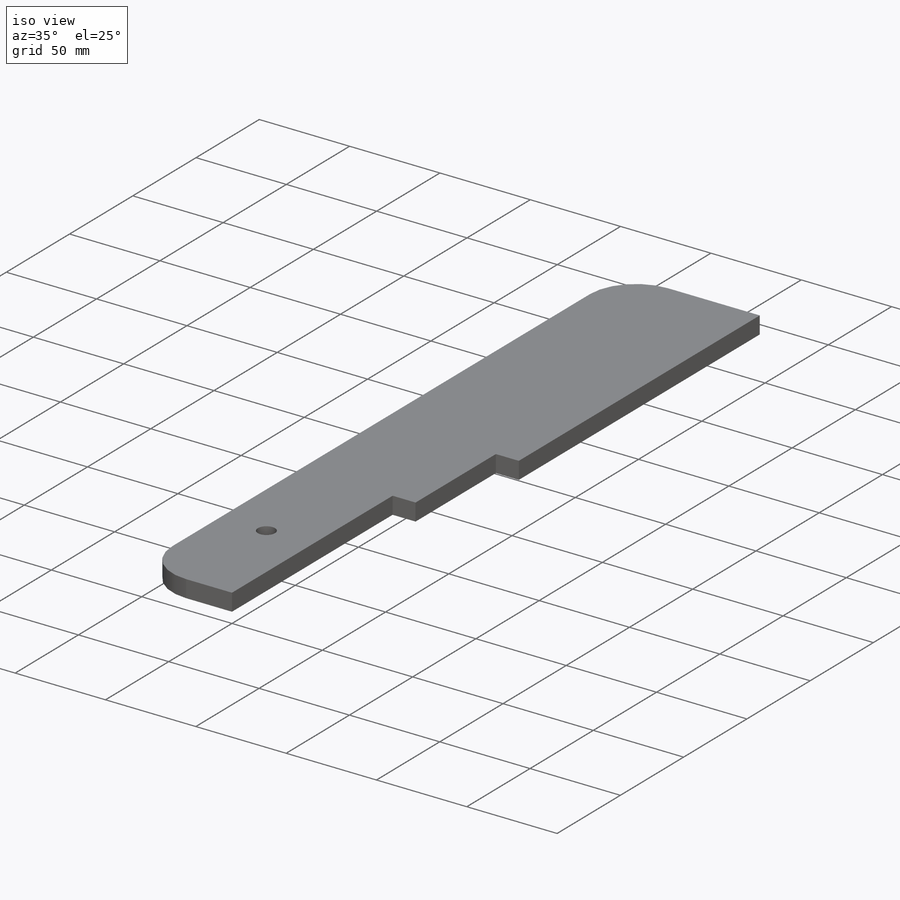
[diagram: iso view]
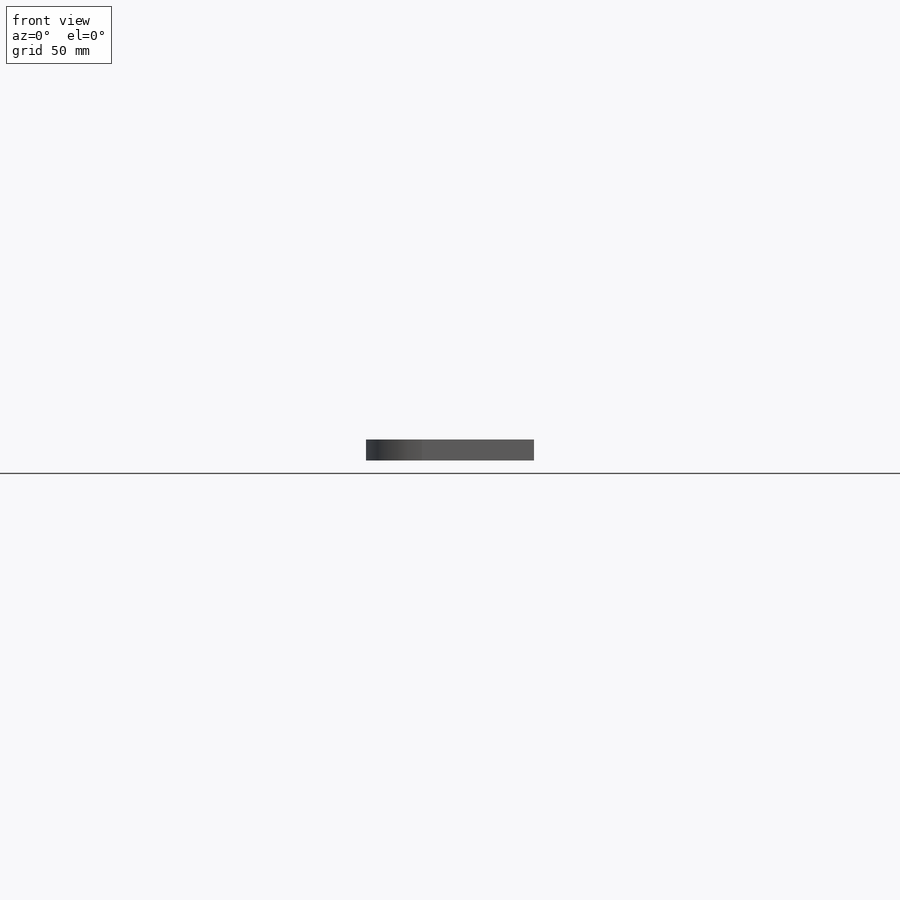
[diagram: front view]
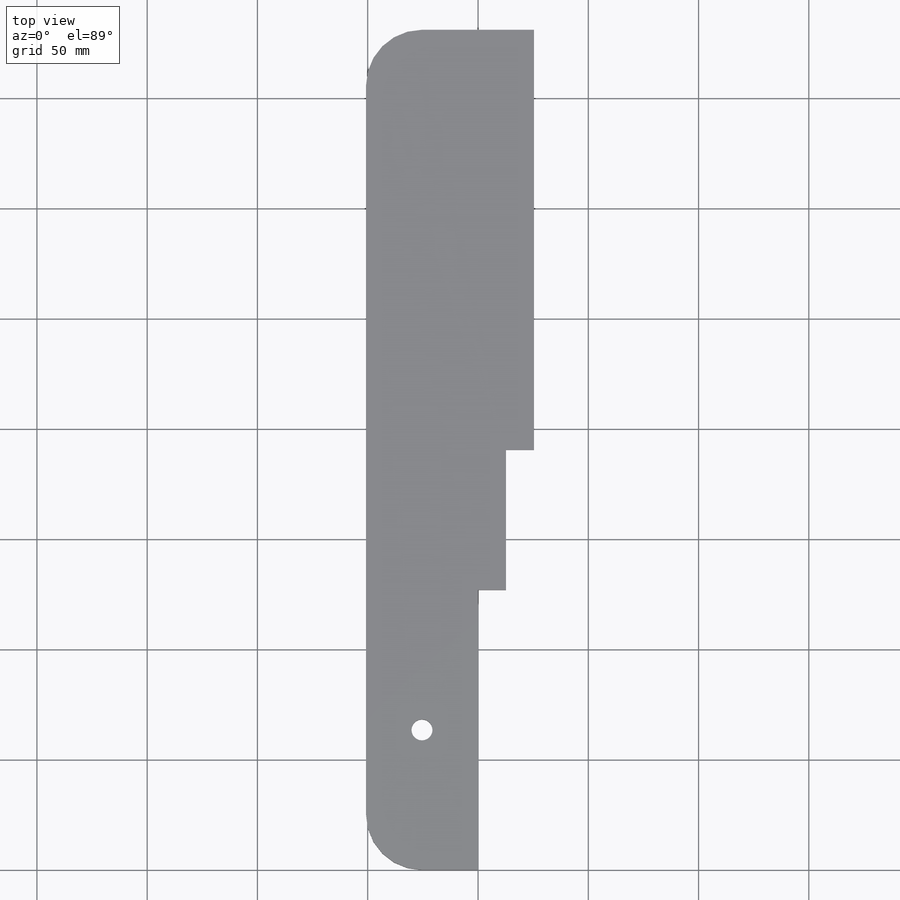
[diagram: top view]
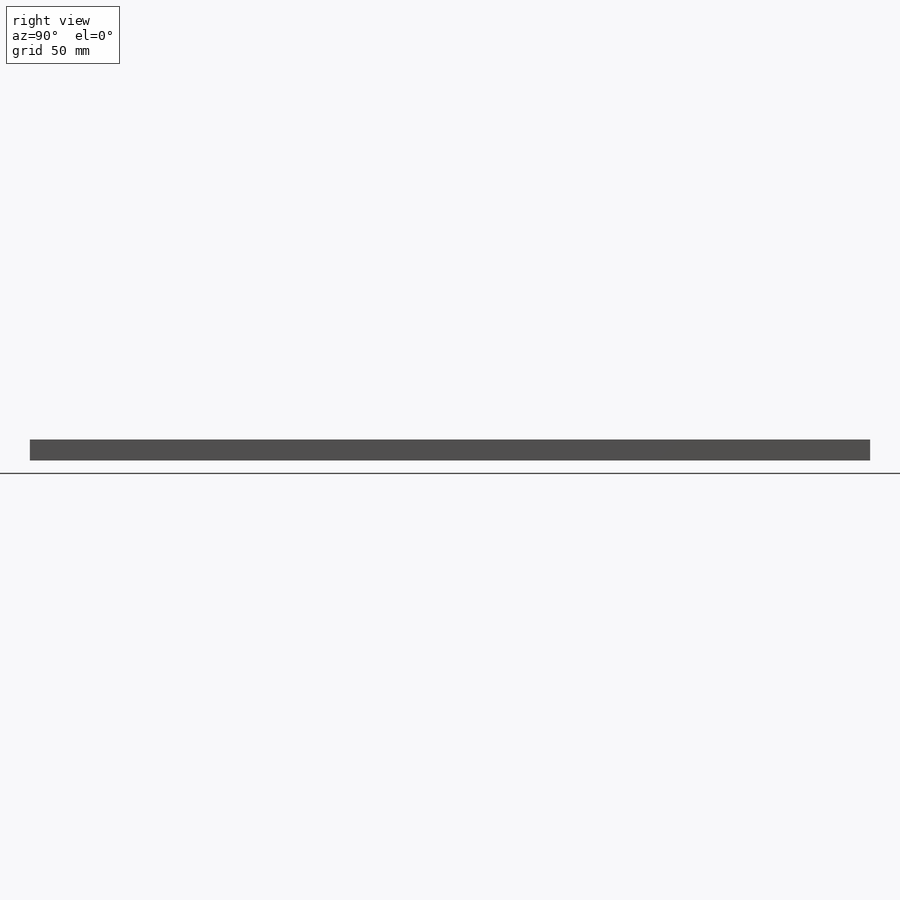
[diagram: right view]
SOLIDWORKS PART (.sldprt)
format: sldprt  version: not decoded by parser v0  size: 172,544 bytes
history: native  units: mm
features: sketch x3, material x1, extrude x1, fillet x1, hole x1 (+12 scaffold rows collapsed)
feature tree (19):
  scaffold x12  (default folders/planes/origin — collapsed)
  material  "Material <not specified>"
  sketch  "Sketch1"  dims[D1=12.7mm D2=12.7mm D3=50.8mm D4=127.0mm D5=190.5mm D6=63.5mm]
  extrude  "Boss-Extrude1"  Depth=9.525mm
  fillet  "Fillet1"  Radius=25.4mm
  hole  "3/8 (0.375) Diameter Hole1"  Diameter=9.525mm Depth=11.684mm
  sketch  "Sketch4"  dims[D1=63.5mm D2=25.4mm]
  sketch  "Sketch3"  dims[hole-wizard template sketch: 47 standard entries collapsed; hole parameters kept: c15.Hole Depth=11.684mm c15.D3=~14.816244mm c15.Drill Angle=118.0deg]
decode coverage: 6 of 6 modeling features carry decoded parameters
note: ~ marks probable driven/reference dimensions
note: suppression state not decoded; provenance and decode notes live in map.json
